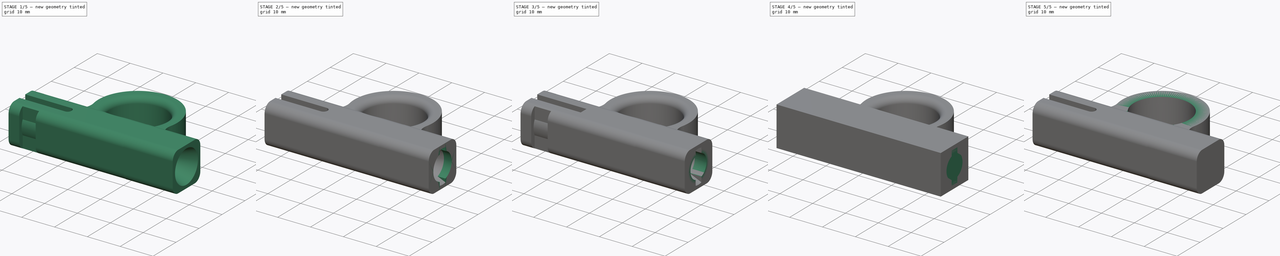
[diagram: build sequence overview — one tinted view per stage of 5, left to right]
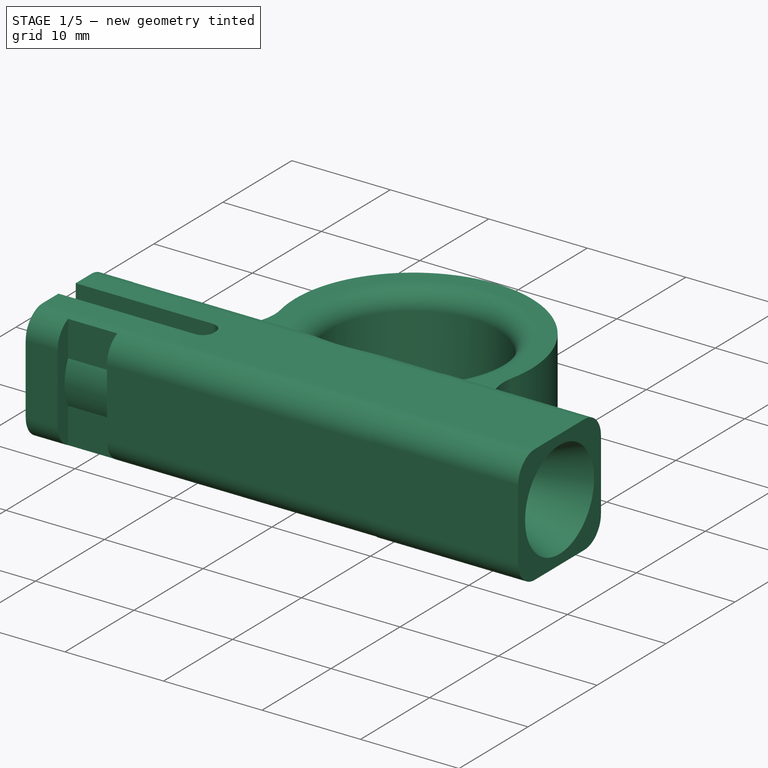
[diagram: stage 1 of 5 — iso view after this stage's code; geometry added in this stage tinted green]
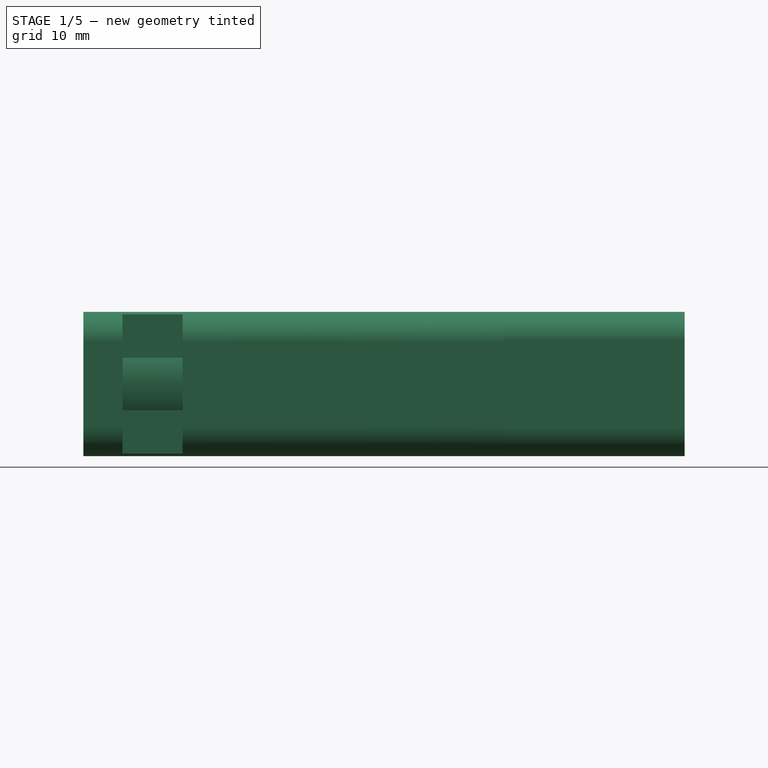
[diagram: stage 1 of 5 — front view after this stage's code; geometry added in this stage tinted green]
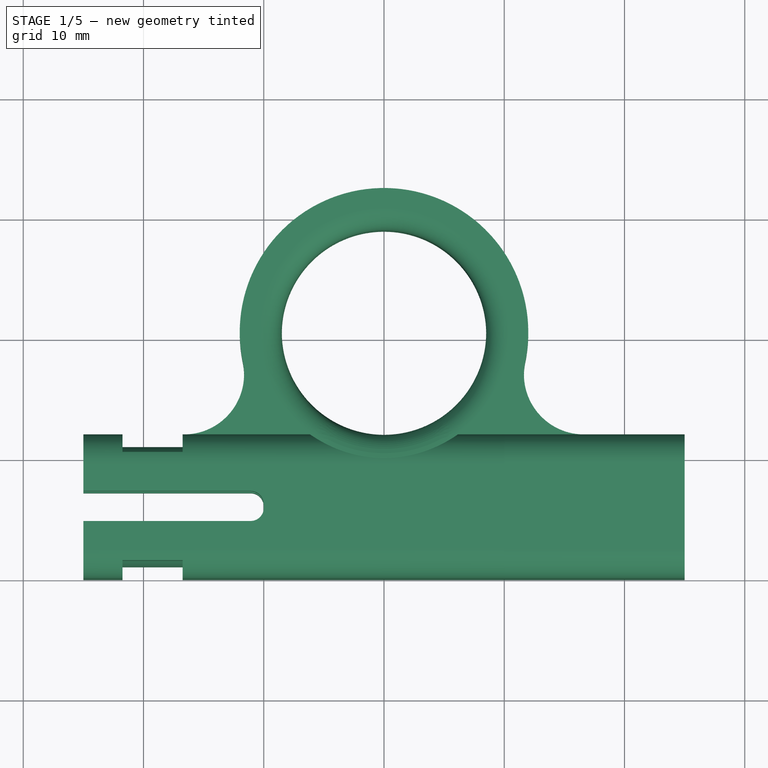
[diagram: stage 1 of 5 — top view after this stage's code; geometry added in this stage tinted green]
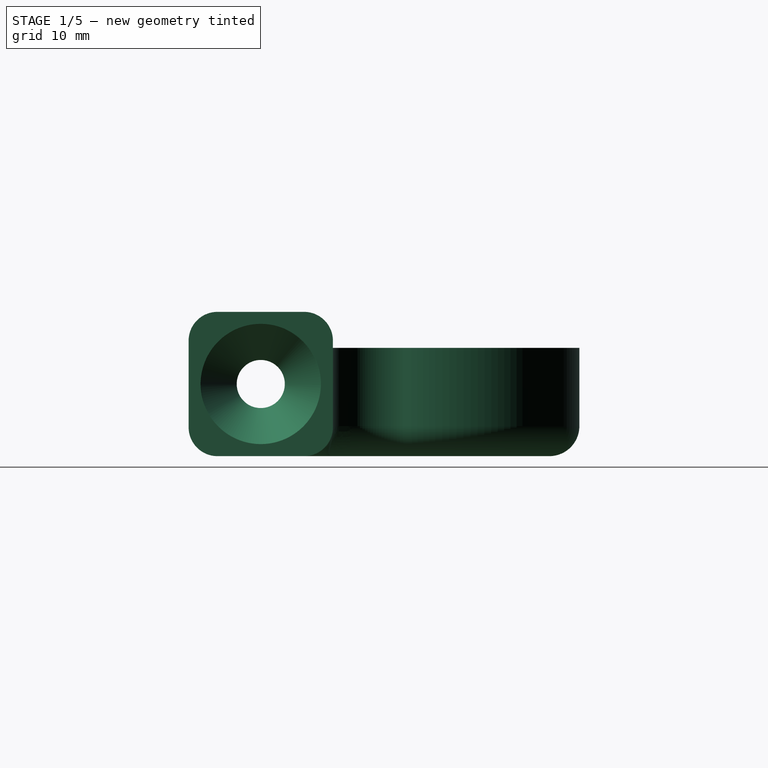
[diagram: stage 1 of 5 — right view after this stage's code; geometry added in this stage tinted green]
FCSTD DOCUMENT  (FreeCAD 0.16R5480 (Git))
Label: feed_tube_spinner_v3.0
License: All rights reserved
LicenseURL: http://en.wikipedia.org/wiki/All_rights_reserved
objects: Sketcher::SketchObject×13, PartDesign::Pocket×8, PartDesign::Fillet×7, PartDesign::Pad×5, PartDesign::Chamfer×4, Part::Feature×2
note: 52 computed .brp shape members not serialized (recipe doc carries the construction recipe); baked Part::Feature solids carry a one-line shape summary decoded from their .brp

FEATURE [Part::Feature] Fillet002005001  label="Fillet002006"
  shape: bbox 50.03 x 33.52 x 13.6 mm, 62 faces (baked)
FEATURE [Sketcher::SketchObject] Sketch009
  ExternalGeometry = -> [Fillet002005001]
  Placement = pos=(-25,0,0) rot=(0.57735,-0.57735,-0.57735;2.0944rad)
  Support = -> Fillet002005001 [Face46]
  sketch-geometry (1):
    g0: Circle CenterX=-6 CenterY=6 CenterZ=0 NormalX=0 NormalY=0 NormalZ=1 Radius=2
  constraints (2):
    c: Coincident(g0,g-3)
    c: Radius(g0) = 2
FEATURE [PartDesign::Pocket] Pocket005
  Length = 5
  Sketch = -> Sketch009
  Type = 1
FEATURE [PartDesign::Chamfer] Chamfer001
  Base = -> Pocket005 [Edge12]
  Size = 3
FEATURE [PartDesign::Chamfer] Chamfer002
  Base = -> Chamfer001 [Edge11]
  Size = 4.2
FEATURE [Sketcher::SketchObject] Sketch010
  ExternalGeometry = -> [Chamfer002]
  Placement = pos=(0,0,12) rot=(0,0,1;0rad)
  Support = -> Chamfer002 [Face5]
  sketch-geometry (12):
    g0: LineSegment StartX=-20.0833 StartY=2.5 StartZ=0 EndX=-18.4167 EndY=2.5 EndZ=0
    g1: LineSegment StartX=-18.4167 StartY=2.5 StartZ=0 EndX=-18.4167 EndY=3.5 EndZ=0
    g2: LineSegment StartX=-18.4167 StartY=3.5 StartZ=0 EndX=-20.0833 EndY=3.5 EndZ=0
    g3: LineSegment StartX=-20.0833 StartY=3.5 StartZ=0 EndX=-20.0833 EndY=2.5 EndZ=0
    g4: LineSegment StartX=-21.75 StartY=9.5 StartZ=0 EndX=-20.0833 EndY=9.5 EndZ=0
    g5: LineSegment StartX=-20.0833 StartY=9.5 StartZ=0 EndX=-20.0833 EndY=8.5 EndZ=0
    g6: LineSegment StartX=-20.0833 StartY=8.5 StartZ=0 EndX=-21.75 EndY=8.5 EndZ=0
    g7: LineSegment StartX=-21.75 StartY=8.5 StartZ=0 EndX=-21.75 EndY=9.5 EndZ=0
    g8: LineSegment StartX=-18.4167 StartY=9.5 StartZ=0 EndX=-16.75 EndY=9.5 EndZ=0
    g9: LineSegment StartX=-16.75 StartY=9.5 StartZ=0 EndX=-16.75 EndY=8.5 EndZ=0
    g10: LineSegment StartX=-16.75 StartY=8.5 StartZ=0 EndX=-18.4167 EndY=8.5 EndZ=0
    g11: LineSegment StartX=-18.4167 StartY=8.5 StartZ=0 EndX=-18.4167 EndY=9.5 EndZ=0
  constraints (36):
    c: Coincident(g0,g1)
    c: Coincident(g1,g2)
    c: Coincident(g2,g3)
    c: Coincident(g3,g0)
    c: Horizontal(g0)
    c: Horizontal(g2)
    c: Vertical(g1)
    c: Vertical(g3)
    c: PointOnObject(g0,g-4)
    c: Coincident(g4,g5)
    c: Coincident(g5,g6)
    c: Coincident(g6,g7)
    c: Coincident(g7,g4)
    c: Horizontal(g4)
    c: Horizontal(g6)
    c: Vertical(g5)
    c: Vertical(g7)
    c: PointOnObject(g4,g-3)
    c: Coincident(g8,g9)
    c: Coincident(g9,g10)
    c: Coincident(g10,g11)
    c: Coincident(g11,g8)
    c: Horizontal(g8)
    c: Horizontal(g10)
    c: Vertical(g9)
    c: Vertical(g11)
    c: PointOnObject(g8,g-3)
    c: Equal(g6,g2)
    c: Equal(g2,g10)
    c: PointOnObject(g5,g3)
    c: PointOnObject(g10,g1)
    c: PointOnObject(g-6,g7)
    c: PointOnObject(g-6,g9)
    c: Equal(g1,g9)
    c: Equal(g9,g5)
    c: DistanceY(g1) = 1
FEATURE [PartDesign::Pad] Pad004
  Length = 12
  Length2 = 100
  Reversed = true
  Sketch = -> Sketch010
  Type = 0
FEATURE [Sketcher::SketchObject] Sketch011
  ExternalGeometry = -> [Pad004]
  Placement = pos=(10,0,0) rot=(0.57735,-0.57735,-0.57735;2.0944rad)
  Support = -> Pad004 [Face13]
  sketch-geometry (1):
    g0: Circle CenterX=-6 CenterY=6 CenterZ=0 NormalX=0 NormalY=0 NormalZ=1 Radius=3.5
  constraints (2):
    c: Coincident(g0,g-4)
    c: PointOnObject(g-4,g0)
FEATURE [PartDesign::Pocket] Pocket006
  Length = 5
  Sketch = -> Sketch011
  Type = 0
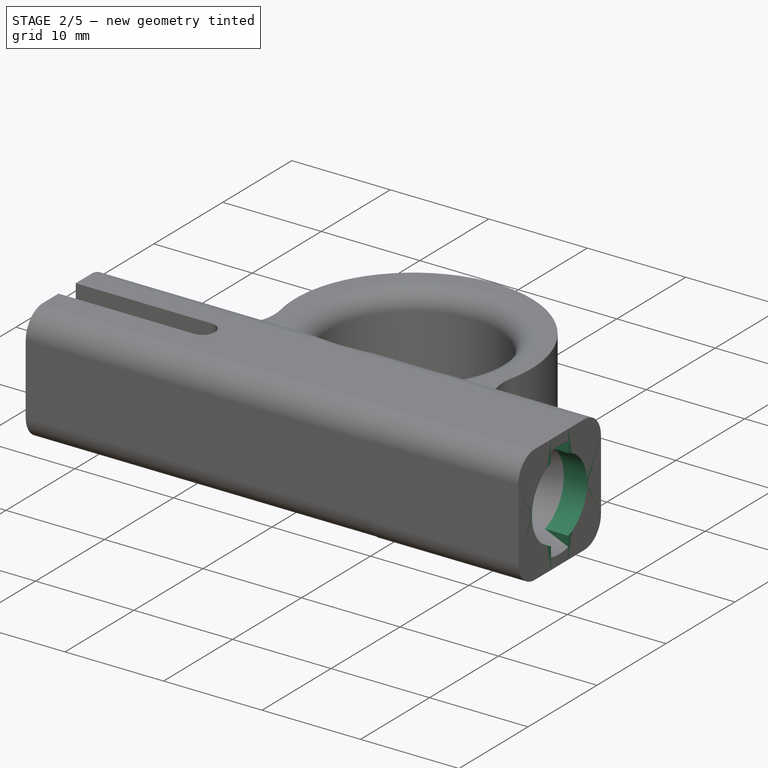
[diagram: stage 2 of 5 — iso view after this stage's code; geometry added in this stage tinted green]
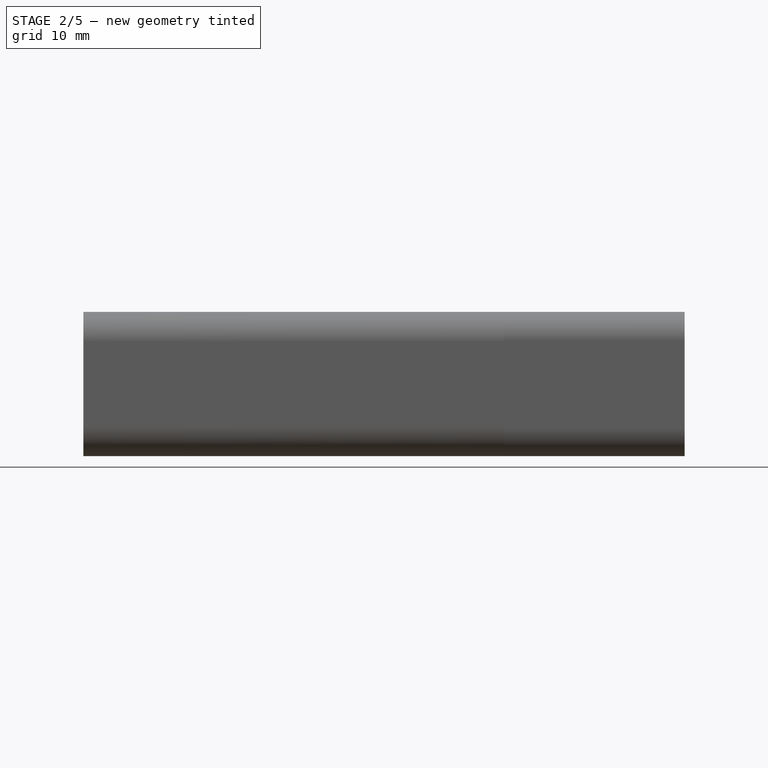
[diagram: stage 2 of 5 — front view after this stage's code; geometry added in this stage tinted green]
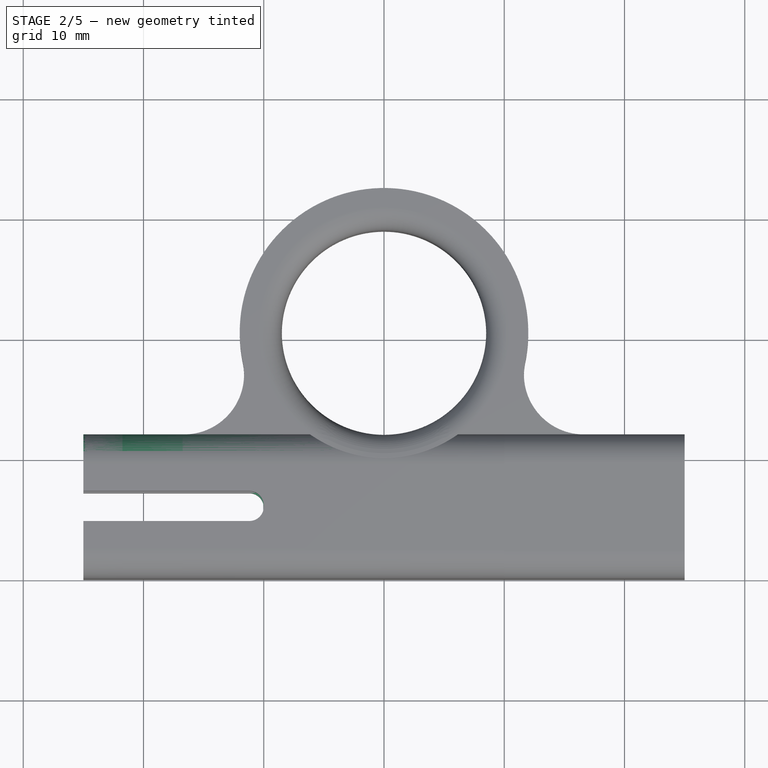
[diagram: stage 2 of 5 — top view after this stage's code; geometry added in this stage tinted green]
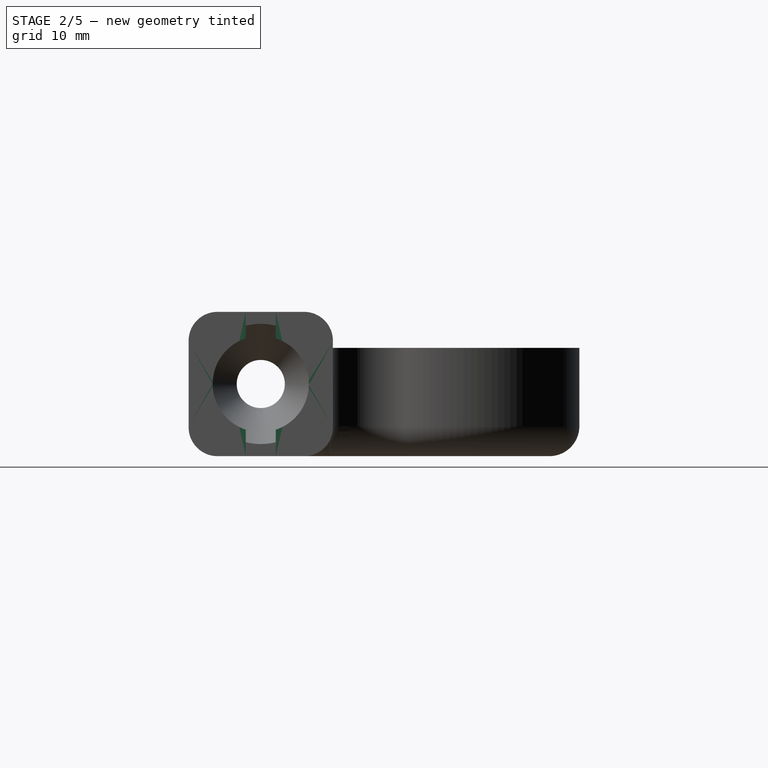
[diagram: stage 2 of 5 — right view after this stage's code; geometry added in this stage tinted green]
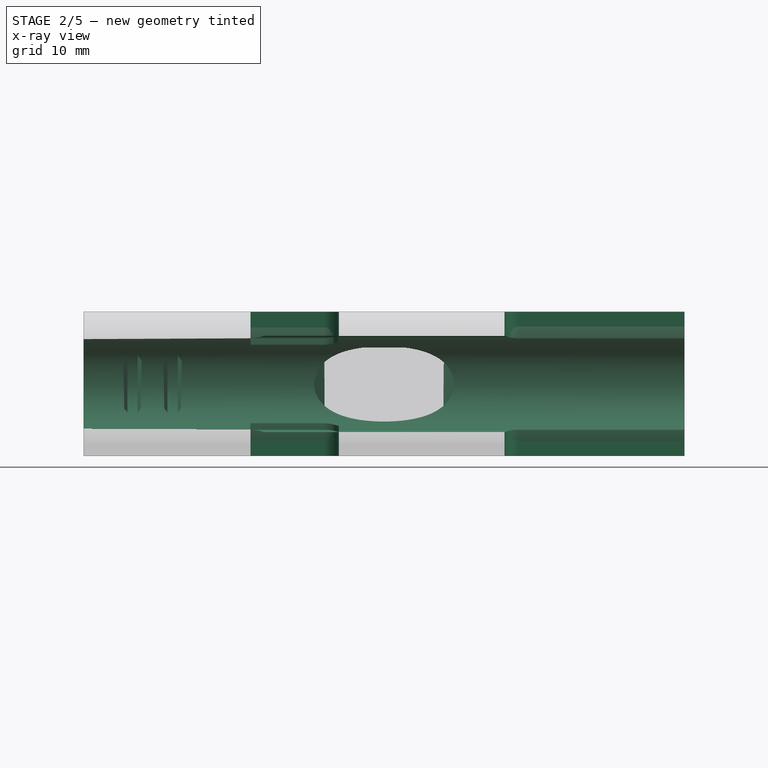
[diagram: stage 2 of 5 — x-ray composite at the front view; earlier geometry ghosted, this stage's added geometry solid]
FEATURE [Part::Feature] Fillet002001  label="Fillet003"
  shape: bbox 50.03 x 33.52 x 12.03 mm, 47 faces (baked)
FEATURE [PartDesign::Fillet] Fillet002002
  Base = -> Fillet002001 [Edge137]
  Radius = 0.9
FEATURE [Sketcher::SketchObject] Sketch004
  ExternalGeometry = -> [Fillet002002]
  Placement = pos=(0,0,12) rot=(0,0,1;0rad)
  Support = -> Fillet002002 [Face32]
  sketch-geometry (1):
    g0: Circle CenterX=0 CenterY=20.5 CenterZ=0 NormalX=0 NormalY=0 NormalZ=1 Radius=10.5
  constraints (2):
    c: Coincident(g0,g-3)
    c: Radius(g0) = 10.5
FEATURE [PartDesign::Pocket] Pocket002
  Length = 3
  Sketch = -> Sketch004
  Type = 0
FEATURE [PartDesign::Fillet] Fillet002003
  Base = -> Pocket002 [Edge95]
  Radius = 1.9
FEATURE [PartDesign::Chamfer] Chamfer003
  Base = -> Pocket006 [Edge244,Edge243,Edge241,Edge242,Edge239,Edge240]
  Size = 0.5
FEATURE [Sketcher::SketchObject] Sketch012
  ExternalGeometry = -> [Chamfer003]
  Placement = pos=(0,0,12) rot=(0,0,1;0rad)
  Support = -> Chamfer003 [Face36]
  sketch-geometry (4):
    g0: ArcOfCircle CenterX=-25 CenterY=6 CenterZ=0 NormalX=0 NormalY=0 NormalZ=1 Radius=1.25 StartAngle=1.5708 EndAngle=4.71239
    g1: ArcOfCircle CenterX=-5 CenterY=6 CenterZ=0 NormalX=0 NormalY=0 NormalZ=1 Radius=1.25 StartAngle=4.71239 EndAngle=7.85398
    g2: LineSegment StartX=-25 StartY=4.75 StartZ=0 EndX=-5 EndY=4.75 EndZ=0
    g3: LineSegment StartX=-25 StartY=7.25 StartZ=0 EndX=-5 EndY=7.25 EndZ=0
  constraints (9):
    c: Tangent(g0,g3) = 1.5708
    c: Tangent(g0,g2) = -1.5708
    c: Tangent(g2,g1) = -1.5708
    c: Tangent(g3,g1) = 1.5708
    c: Horizontal(g2)
    c: Equal(g0,g1)
    c: Coincident(g0,g-4)
    c: Coincident(g-3,g0)
    c: DistanceX(g3) = 20
FEATURE [PartDesign::Pocket] Pocket007
  Length = 20
  Sketch = -> Sketch012
  Type = 0
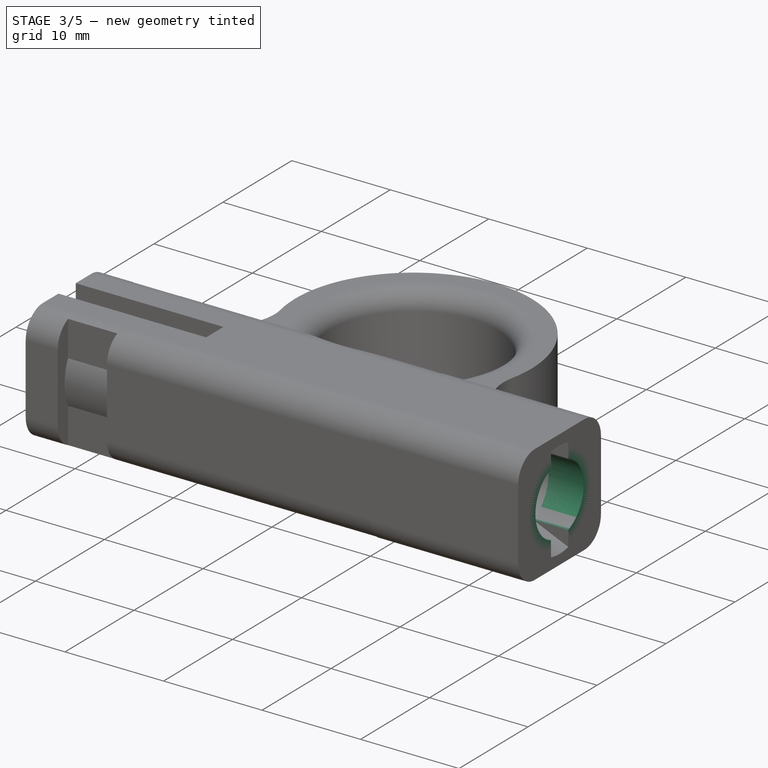
[diagram: stage 3 of 5 — iso view after this stage's code; geometry added in this stage tinted green]
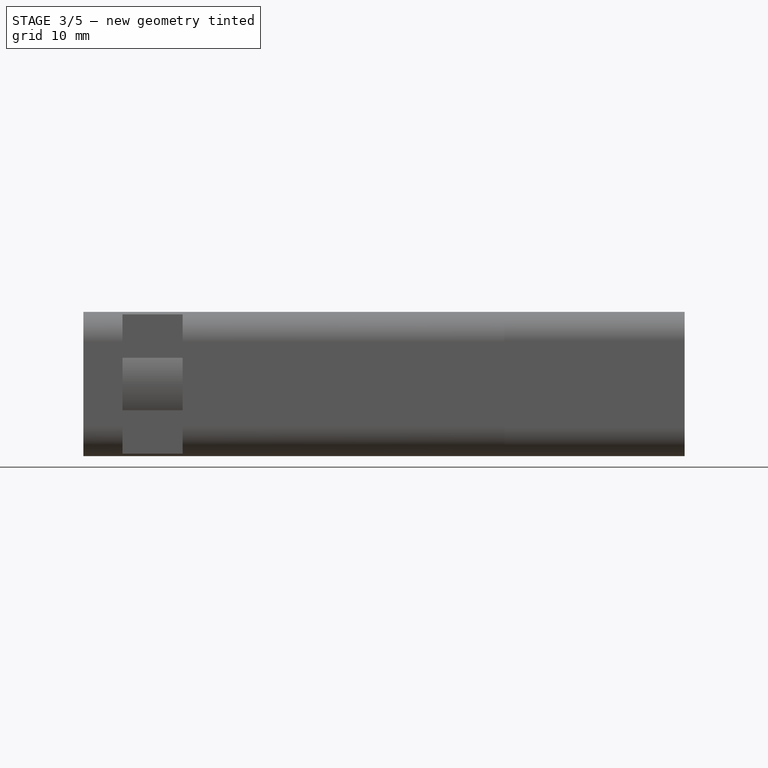
[diagram: stage 3 of 5 — front view after this stage's code; geometry added in this stage tinted green]
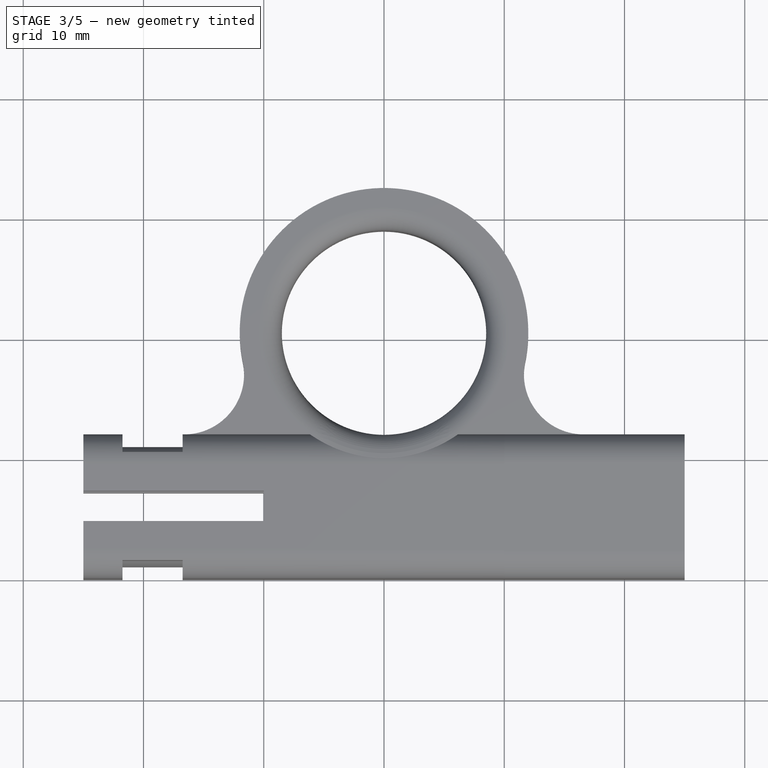
[diagram: stage 3 of 5 — top view after this stage's code; geometry added in this stage tinted green]
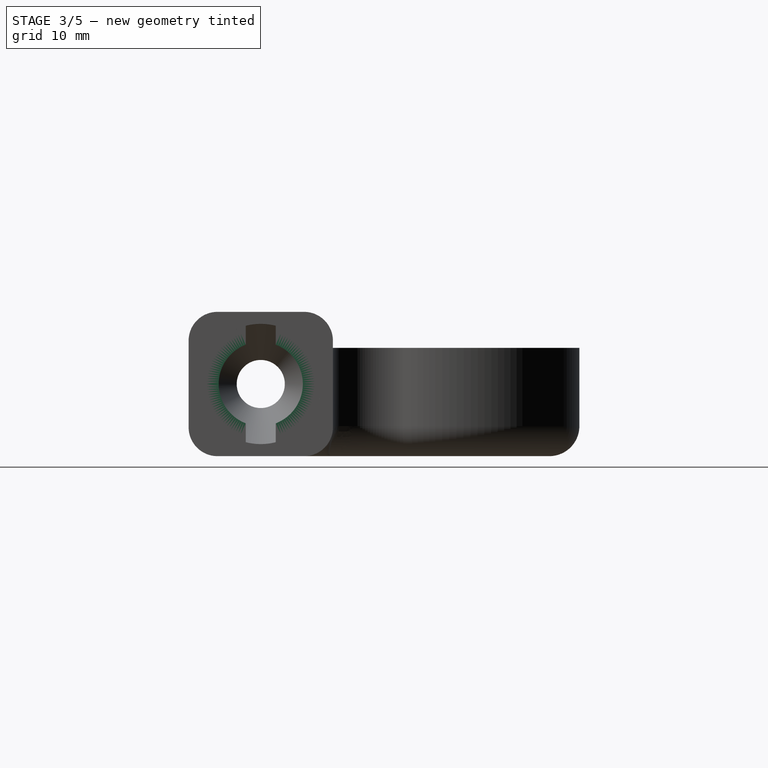
[diagram: stage 3 of 5 — right view after this stage's code; geometry added in this stage tinted green]
FEATURE [Sketcher::SketchObject] Sketch005
  ExternalGeometry = -> [Fillet002003]
  Placement = pos=(0,0,12) rot=(0,0,1;0rad)
  Support = -> Fillet002003 [Face43]
  sketch-geometry (16):
    g0: LineSegment StartX=-21.75 StartY=12 StartZ=0 EndX=-16.75 EndY=12 EndZ=0
    g1: LineSegment StartX=-16.75 StartY=12 StartZ=0 EndX=-16.75 EndY=10.5 EndZ=0
    g2: LineSegment StartX=-16.75 StartY=10.5 StartZ=0 EndX=-21.75 EndY=10.5 EndZ=0
    g3: LineSegment StartX=-21.75 StartY=10.5 StartZ=0 EndX=-21.75 EndY=12 EndZ=0
    g4: LineSegment StartX=-21.75 StartY=0 StartZ=0 EndX=-16.75 EndY=0 EndZ=0
    g5: LineSegment StartX=-16.75 StartY=0 StartZ=0 EndX=-16.75 EndY=1.5 EndZ=0
    g6: LineSegment StartX=-16.75 StartY=1.5 StartZ=0 EndX=-21.75 EndY=1.5 EndZ=0
    g7: LineSegment StartX=-21.75 StartY=1.5 StartZ=0 EndX=-21.75 EndY=0 EndZ=0
    g8: LineSegment StartX=16.75 StartY=0 StartZ=0 EndX=21.75 EndY=0 EndZ=0
    g9: LineSegment StartX=21.75 StartY=0 StartZ=0 EndX=21.75 EndY=1.5 EndZ=0
    g10: LineSegment StartX=21.75 StartY=1.5 StartZ=0 EndX=16.75 EndY=1.5 EndZ=0
    g11: LineSegment StartX=16.75 StartY=1.5 StartZ=0 EndX=16.75 EndY=0 EndZ=0
    g12: LineSegment StartX=16.75 StartY=12 StartZ=0 EndX=21.75 EndY=12 EndZ=0
    g13: LineSegment StartX=21.75 StartY=12 StartZ=0 EndX=21.75 EndY=10.5 EndZ=0
    g14: LineSegment StartX=21.75 StartY=10.5 StartZ=0 EndX=16.75 EndY=10.5 EndZ=0
    g15: LineSegment StartX=16.75 StartY=10.5 StartZ=0 EndX=16.75 EndY=12 EndZ=0
  constraints (48):
    c: Coincident(g0,g1)
    c: Coincident(g1,g2)
    c: Coincident(g2,g3)
    c: Coincident(g3,g0)
    c: Horizontal(g0)
    c: Horizontal(g2)
    c: Vertical(g1)
    c: Vertical(g3)
    c: PointOnObject(g0,g-4)
    c: Coincident(g4,g5)
    c: Coincident(g5,g6)
    c: Coincident(g6,g7)
    c: Coincident(g7,g4)
    c: Horizontal(g4)
    c: Horizontal(g6)
    c: Vertical(g5)
    c: Vertical(g7)
    c: PointOnObject(g4,g-1)
    c: Coincident(g8,g9)
    c: Coincident(g9,g10)
    c: Coincident(g10,g11)
    c: Coincident(g11,g8)
    c: Horizontal(g8)
    c: Horizontal(g10)
    c: Vertical(g9)
    c: Vertical(g11)
    c: PointOnObject(g8,g-1)
    c: Coincident(g12,g13)
    c: Coincident(g13,g14)
    c: Coincident(g14,g15)
    c: Coincident(g15,g12)
    c: Horizontal(g12)
    c: Horizontal(g14)
    c: Vertical(g13)
    c: Vertical(g15)
    c: PointOnObject(g12,g-3)
    c: Equal(g13,g9)
    c: Equal(g9,g5)
    c: Equal(g5,g1)
    c: Equal(g2,g6)
    c: Equal(g6,g14)
    c: Equal(g14,g10)
    c: DistanceX(g14) = -5
    c: DistanceX(g13,g-3) = 3.25
    c: PointOnObject(g14,g11)
    c: PointOnObject(g2,g7)
    c: DistanceX(g-4,g0) = 3.25
    c: DistanceY(g7) = -1.5
FEATURE [PartDesign::Pocket] Pocket003
  Length = 5
  Sketch = -> Sketch005
  Type = 1
FEATURE [PartDesign::Chamfer] Chamfer
  Base = -> Pocket003 [Edge54,Edge119,Edge84,Edge100]
  Size = 0.5
FEATURE [Sketcher::SketchObject] Sketch006
  ExternalGeometry = -> [Chamfer]
  Placement = pos=(-25,0,0) rot=(0.57735,-0.57735,-0.57735;2.0944rad)
  Support = -> Chamfer [Face1]
  sketch-geometry (2):
    g0: Circle CenterX=-6 CenterY=6 CenterZ=0 NormalX=0 NormalY=0 NormalZ=1 Radius=3.5
    g1: Circle CenterX=-6 CenterY=6 CenterZ=0 NormalX=0 NormalY=0 NormalZ=1 Radius=5
  constraints (4):
    c: Coincident(g0,g-4)
    c: Coincident(g1,g0)
    c: Radius(g0) = 3.5
    c: Radius(g1) = 5
FEATURE [PartDesign::Pad] Pad002
  Length = 50
  Length2 = 100
  Reversed = true
  Sketch = -> Sketch006
  Type = 0
FEATURE [Sketcher::SketchObject] Sketch007
  ExternalGeometry = -> [Pad002]
  Placement = pos=(0,0,12) rot=(0,0,1;0rad)
  Support = -> Pad002 [Face1]
  sketch-geometry (8):
    g0: LineSegment StartX=-25 StartY=7.25 StartZ=0 EndX=-10 EndY=7.25 EndZ=0
    g1: LineSegment StartX=-10 StartY=7.25 StartZ=0 EndX=-10 EndY=4.75 EndZ=0
    g2: LineSegment StartX=-10 StartY=4.75 StartZ=0 EndX=-25 EndY=4.75 EndZ=0
    g3: LineSegment StartX=-25 StartY=4.75 StartZ=0 EndX=-25 EndY=7.25 EndZ=0
    g4: LineSegment StartX=25 StartY=7.25 StartZ=0 EndX=10 EndY=7.25 EndZ=0
    g5: LineSegment StartX=10 StartY=7.25 StartZ=0 EndX=10 EndY=4.75 EndZ=0
    g6: LineSegment StartX=10 StartY=4.75 StartZ=0 EndX=25 EndY=4.75 EndZ=0
    g7: LineSegment StartX=25 StartY=4.75 StartZ=0 EndX=25 EndY=7.25 EndZ=0
  constraints (22):
    c: Coincident(g0,g1)
    c: Coincident(g1,g2)
    c: Coincident(g2,g3)
    c: Coincident(g3,g0)
    c: Horizontal(g0)
    c: Horizontal(g2)
    c: Vertical(g1)
    c: Vertical(g3)
    c: Coincident(g0,g-4)
    c: Coincident(g4,g5)
    c: Coincident(g5,g6)
    c: Coincident(g6,g7)
    c: Coincident(g7,g4)
    c: Horizontal(g4)
    c: Horizontal(g6)
    c: Vertical(g5)
    c: Vertical(g7)
    c: Coincident(g4,g-5)
    c: Coincident(g6,g-6)
    c: PointOnObject(g1,g6)
    c: Equal(g4,g0)
    c: DistanceX(g4) = -15
FEATURE [PartDesign::Pocket] Pocket004
  Length = 5
  Sketch = -> Sketch007
  Type = 1
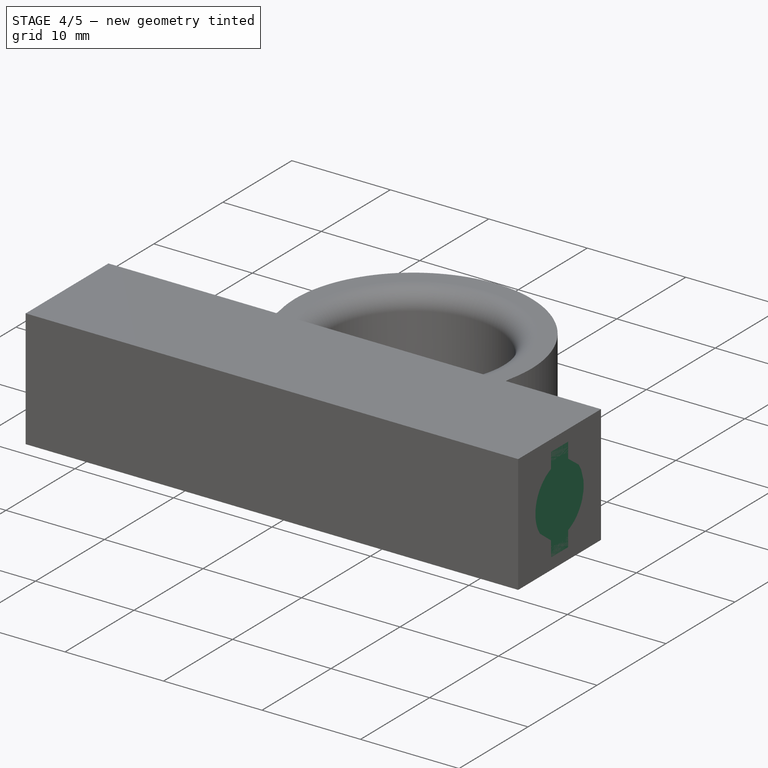
[diagram: stage 4 of 5 — iso view after this stage's code; geometry added in this stage tinted green]
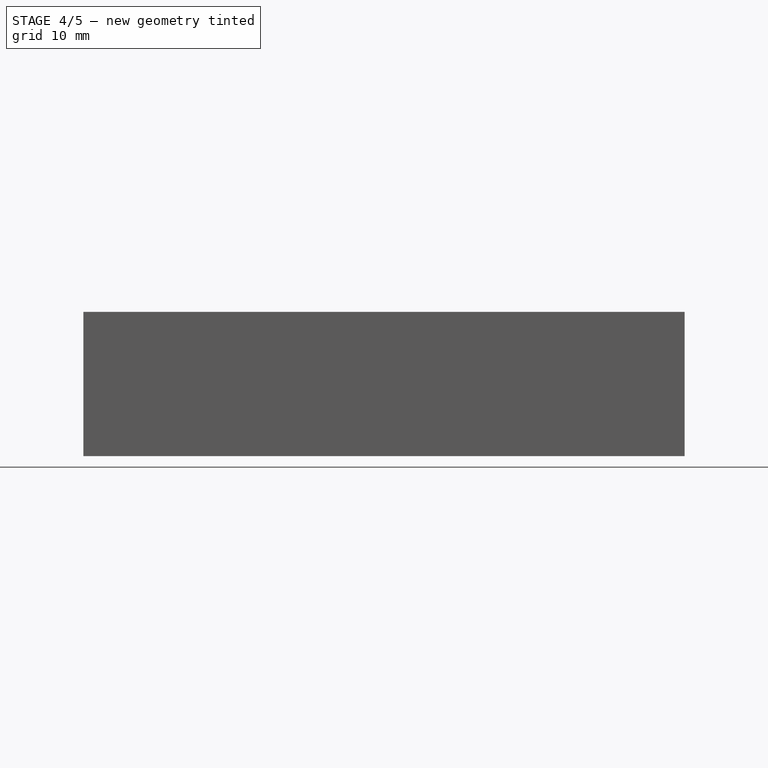
[diagram: stage 4 of 5 — front view after this stage's code; geometry added in this stage tinted green]
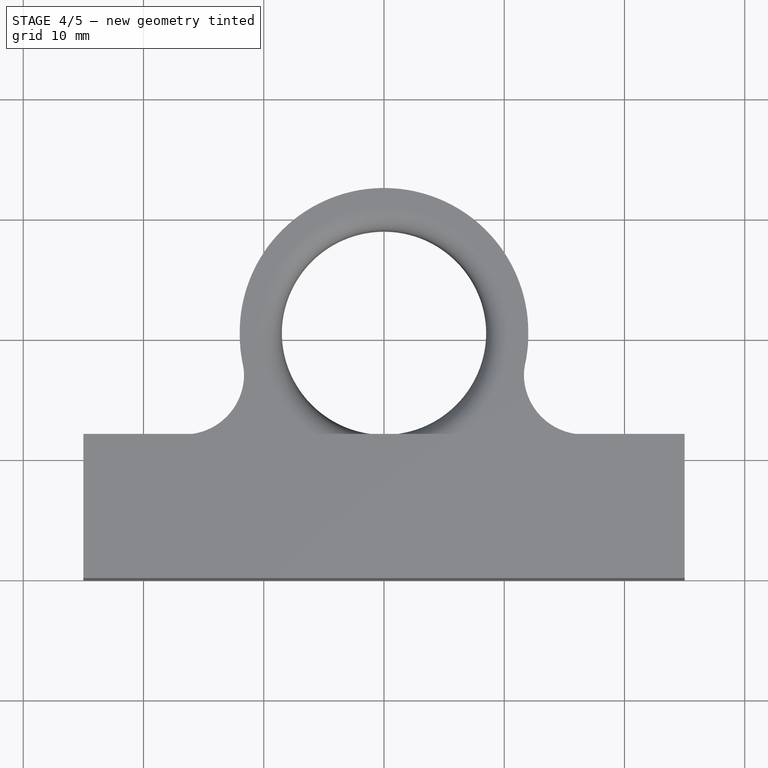
[diagram: stage 4 of 5 — top view after this stage's code; geometry added in this stage tinted green]
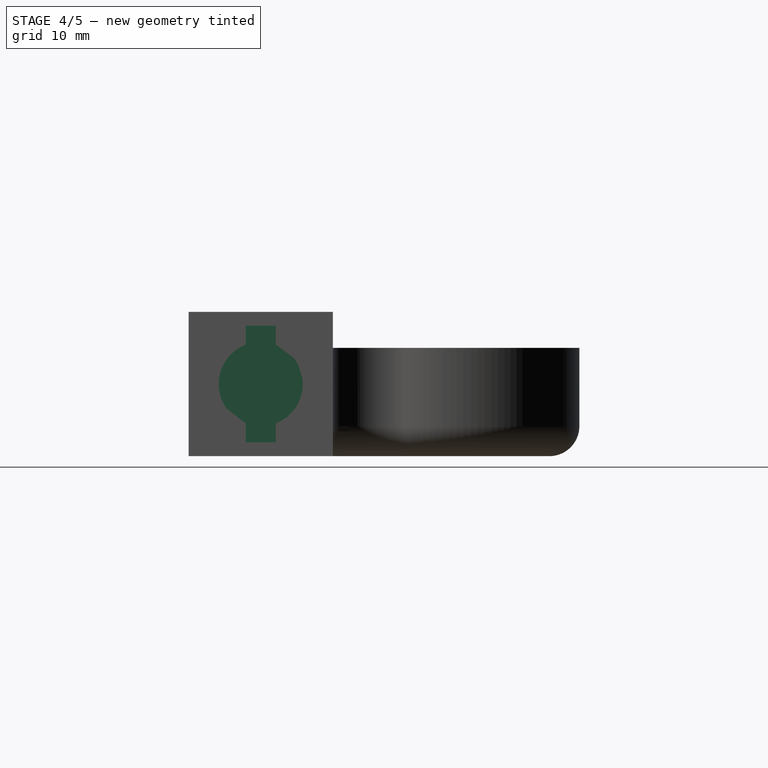
[diagram: stage 4 of 5 — right view after this stage's code; geometry added in this stage tinted green]
FEATURE [Sketcher::SketchObject] Sketch
  sketch-geometry (4):
    g0: LineSegment StartX=-25 StartY=0 StartZ=0 EndX=25 EndY=0 EndZ=0
    g1: LineSegment StartX=25 StartY=0 StartZ=0 EndX=25 EndY=12 EndZ=0
    g2: LineSegment StartX=25 StartY=12 StartZ=0 EndX=-25 EndY=12 EndZ=0
    g3: LineSegment StartX=-25 StartY=12 StartZ=0 EndX=-25 EndY=0 EndZ=0
  constraints (12):
    c: Coincident(g0,g1)
    c: Coincident(g1,g2)
    c: Coincident(g2,g3)
    c: Coincident(g3,g0)
    c: Horizontal(g0)
    c: Horizontal(g2)
    c: Vertical(g1)
    c: Vertical(g3)
    c: PointOnObject(g0,g-1)
    c: DistanceY(g3) = -12
    c: DistanceX(g-1,g0) = -25
    c: DistanceX(g0) = 50
FEATURE [PartDesign::Pad] Pad
  Length = 12
  Length2 = 100
  Sketch = -> Sketch
  Type = 0
FEATURE [Sketcher::SketchObject] Sketch001
  ExternalGeometry = -> [Pad]
  Placement = pos=(-25,0,0) rot=(0.57735,-0.57735,-0.57735;2.0944rad)
  Support = -> Pad [Face4]
  sketch-geometry (3):
    g0: LineSegment [constr] StartX=-12 StartY=12 StartZ=0 EndX=-6 EndY=6 EndZ=0
    g1: LineSegment [constr] StartX=-6 StartY=6 StartZ=0 EndX=0 EndY=0 EndZ=0
    g2: Circle CenterX=-6 CenterY=6 CenterZ=0 NormalX=0 NormalY=0 NormalZ=1 Radius=4
  constraints (7):
    c: Coincident(g-3,g0)
    c: Coincident(g0,g1)
    c: Coincident(g1,g-1)
    c: Equal(g1,g0)
    c: PointOnObject(g0,g1)
    c: Coincident(g2,g0)
    c: Radius(g2) = 4
FEATURE [PartDesign::Pocket] Pocket
  Length = 5
  Sketch = -> Sketch001
  Type = 1
FEATURE [PartDesign::Fillet] Fillet002004
  Base = -> Pocket004 [Edge73,Edge235,Edge236,Edge80,Edge234,Edge34,Edge39,Edge243]
  Radius = 1.1
FEATURE [Sketcher::SketchObject] Sketch008
  ExternalGeometry = -> [Fillet002004]
  Placement = pos=(0,0,12) rot=(0,0,1;0rad)
  Support = -> Fillet002004 [Face1]
  sketch-geometry (4):
    g0: LineSegment StartX=25 StartY=12 StartZ=0 EndX=10 EndY=12 EndZ=0
    g1: LineSegment StartX=10 StartY=12 StartZ=0 EndX=10 EndY=0 EndZ=0
    g2: LineSegment StartX=10 StartY=0 StartZ=0 EndX=25 EndY=0 EndZ=0
    g3: LineSegment StartX=25 StartY=0 StartZ=0 EndX=25 EndY=12 EndZ=0
  constraints (11):
    c: Coincident(g0,g1)
    c: Coincident(g1,g2)
    c: Coincident(g2,g3)
    c: Coincident(g3,g0)
    c: Horizontal(g0)
    c: Horizontal(g2)
    c: Vertical(g1)
    c: Vertical(g3)
    c: Coincident(g0,g-3)
    c: PointOnObject(g1,g-1)
    c: DistanceX(g0) = -15
FEATURE [PartDesign::Pad] Pad003
  Length = 12
  Length2 = 100
  Reversed = true
  Sketch = -> Sketch008
  Type = 0
FEATURE [PartDesign::Fillet] Fillet002005
  Base = -> Pad003 [Edge242,Edge240,Edge230,Edge208]
  Radius = 2.4
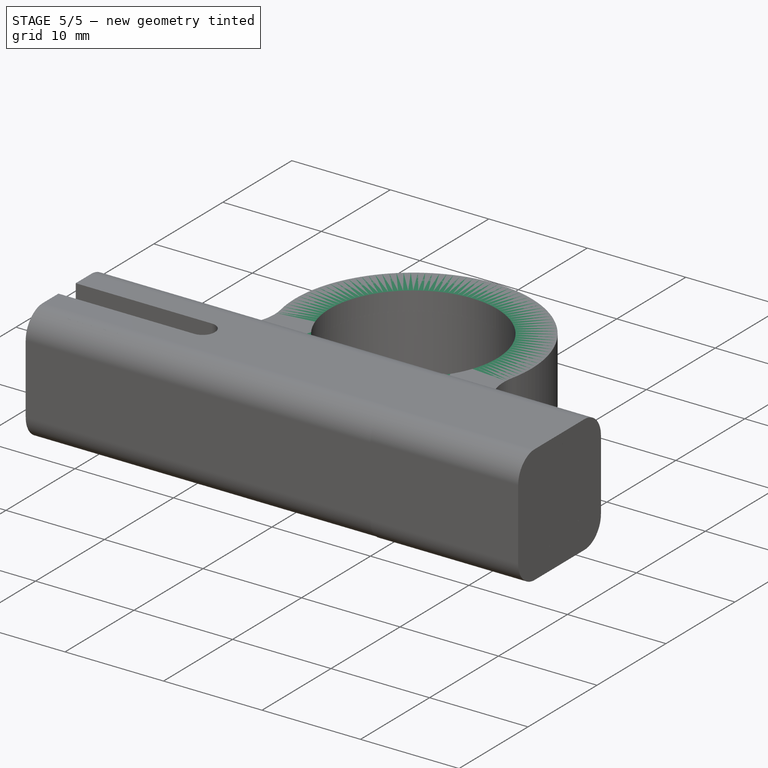
[diagram: stage 5 of 5 — iso view after this stage's code; geometry added in this stage tinted green]
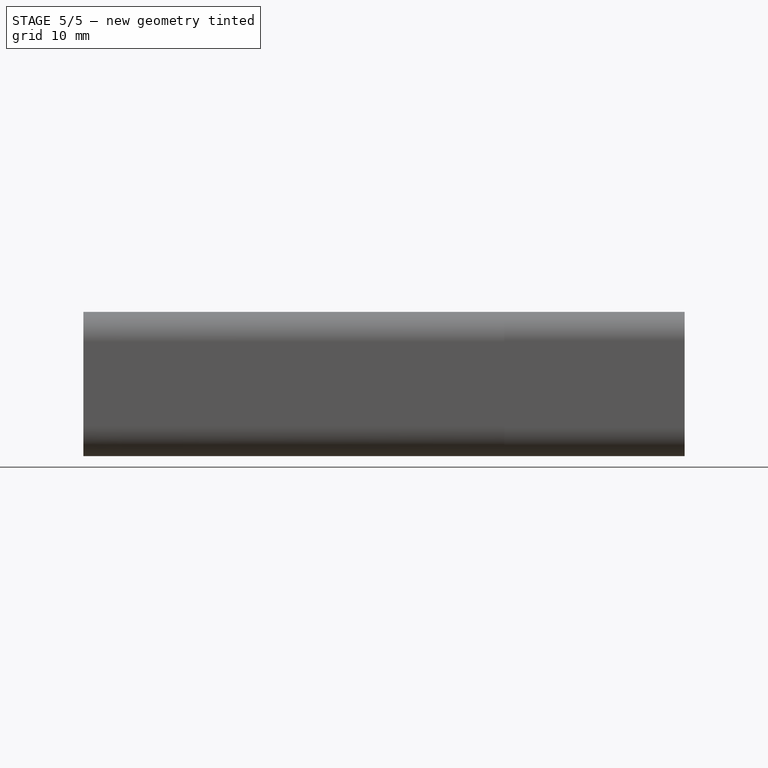
[diagram: stage 5 of 5 — front view after this stage's code; geometry added in this stage tinted green]
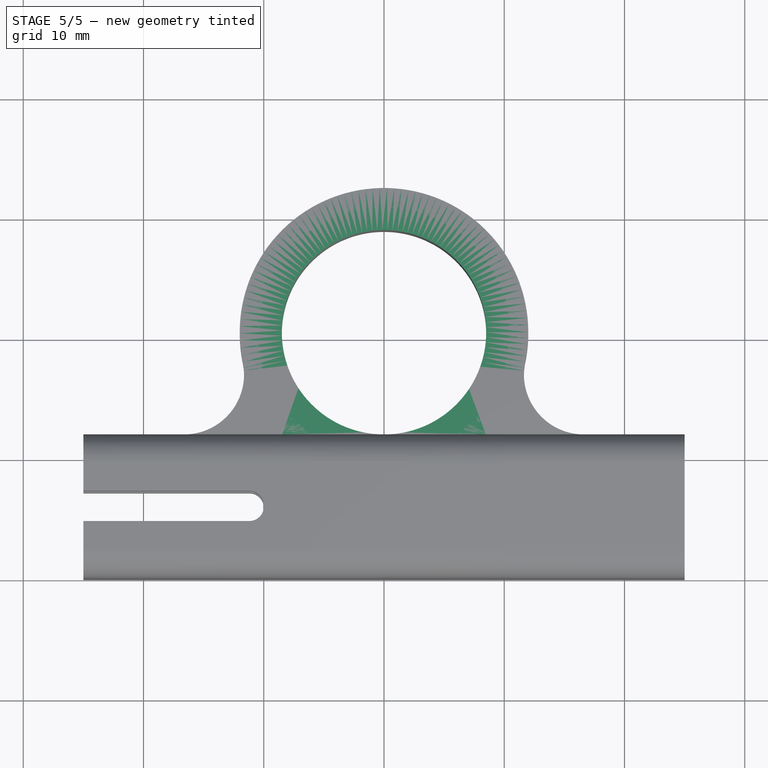
[diagram: stage 5 of 5 — top view after this stage's code; geometry added in this stage tinted green]
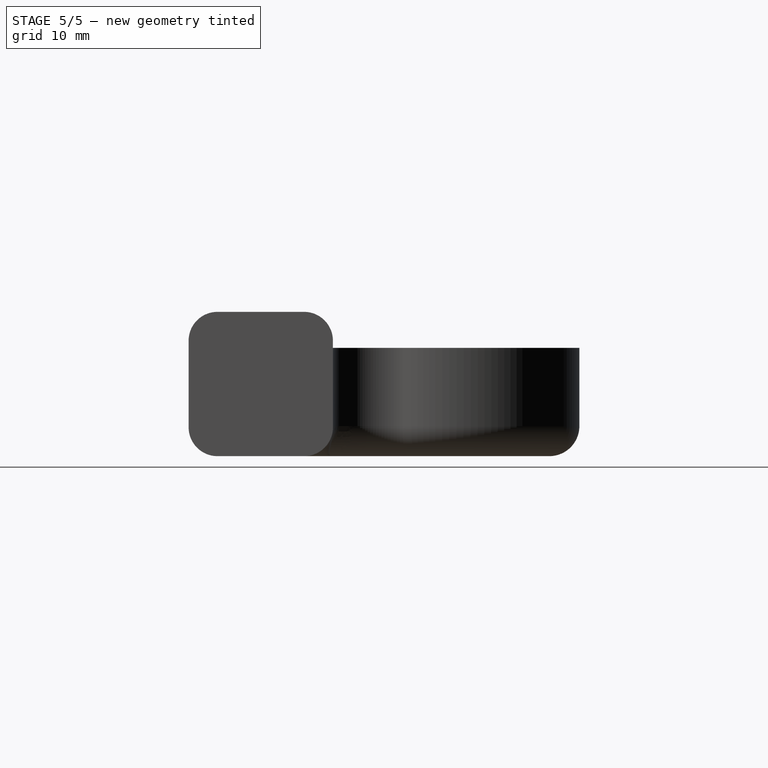
[diagram: stage 5 of 5 — right view after this stage's code; geometry added in this stage tinted green]
FEATURE [Sketcher::SketchObject] Sketch002
  ExternalGeometry = -> [Pocket]
  Placement = pos=(0,0,0) rot=(1,0,0;3.14159rad)
  Support = -> Pocket [Face4]
  sketch-geometry (2):
    g0: Circle CenterX=0 CenterY=-20.5 CenterZ=0 NormalX=0 NormalY=0 NormalZ=1 Radius=8.5
    g1: Circle CenterX=0 CenterY=-20.5 CenterZ=0 NormalX=0 NormalY=0 NormalZ=1 Radius=12
  constraints (5):
    c: PointOnObject(g0,g-2)
    c: Coincident(g1,g0)
    c: Radius(g0) = 8.5
    c: Tangent(g0,g-3)
    c: Radius(g1) = 12
FEATURE [PartDesign::Pad] Pad001
  Length = 9
  Length2 = 100
  Reversed = true
  Sketch = -> Sketch002
  Type = 0
FEATURE [PartDesign::Fillet] Fillet
  Base = -> Pad001 [Edge20,Edge17]
  Radius = 5
FEATURE [Sketcher::SketchObject] Sketch003
  ExternalGeometry = -> [Fillet]
  Placement = pos=(0,0,12) rot=(0,0,1;0rad)
  Support = -> Fillet [Face10]
  sketch-geometry (10):
    g0: LineSegment StartX=-25 StartY=4.75 StartZ=0 EndX=-10 EndY=4.75 EndZ=0
    g1: LineSegment StartX=-10 StartY=4.75 StartZ=0 EndX=-10 EndY=7.25 EndZ=0
    g2: LineSegment StartX=-10 StartY=7.25 StartZ=0 EndX=-25 EndY=7.25 EndZ=0
    g3: LineSegment StartX=-25 StartY=7.25 StartZ=0 EndX=-25 EndY=4.75 EndZ=0
    g4: LineSegment StartX=25 StartY=4.75 StartZ=0 EndX=10 EndY=4.75 EndZ=0
    g5: LineSegment StartX=10 StartY=4.75 StartZ=0 EndX=10 EndY=7.25 EndZ=0
    g6: LineSegment StartX=10 StartY=7.25 StartZ=0 EndX=25 EndY=7.25 EndZ=0
    g7: LineSegment StartX=25 StartY=7.25 StartZ=0 EndX=25 EndY=4.75 EndZ=0
    g8: LineSegment [constr] StartX=-25 StartY=12 StartZ=0 EndX=-10 EndY=7.25 EndZ=0
    g9: LineSegment [constr] StartX=-10 StartY=4.75 StartZ=0 EndX=-25 EndY=0 EndZ=0
  constraints (28):
    c: Coincident(g0,g1)
    c: Coincident(g1,g2)
    c: Coincident(g2,g3)
    c: Coincident(g3,g0)
    c: Horizontal(g0)
    c: Horizontal(g2)
    c: Vertical(g1)
    c: Vertical(g3)
    c: PointOnObject(g0,g-3)
    c: Coincident(g4,g5)
    c: Coincident(g5,g6)
    c: Coincident(g6,g7)
    c: Coincident(g7,g4)
    c: Horizontal(g4)
    c: Horizontal(g6)
    c: Vertical(g5)
    c: Vertical(g7)
    c: PointOnObject(g4,g-4)
    c: Equal(g6,g2)
    c: Equal(g5,g1)
    c: DistanceY(g6,g4) = -2.5
    c: DistanceX(g2) = -15
    c: Coincident(g8,g-3)
    c: Coincident(g8,g1)
    c: Coincident(g9,g0)
    c: Coincident(g9,g-3)
    c: Equal(g8,g9)
    c: PointOnObject(g1,g6)
FEATURE [PartDesign::Pocket] Pocket001
  Length = 5
  Sketch = -> Sketch003
  Type = 1
FEATURE [PartDesign::Fillet] Fillet001
  Base = -> Pocket001 [Edge39,Edge91,Edge41,Edge92,Edge57,Edge93,Edge59,Edge94]
  Radius = 1.2
FEATURE [PartDesign::Fillet] Fillet002
  Base = -> Fillet001 [Edge13,Edge12,Edge5,Edge35,Edge58]
  Radius = 2.5
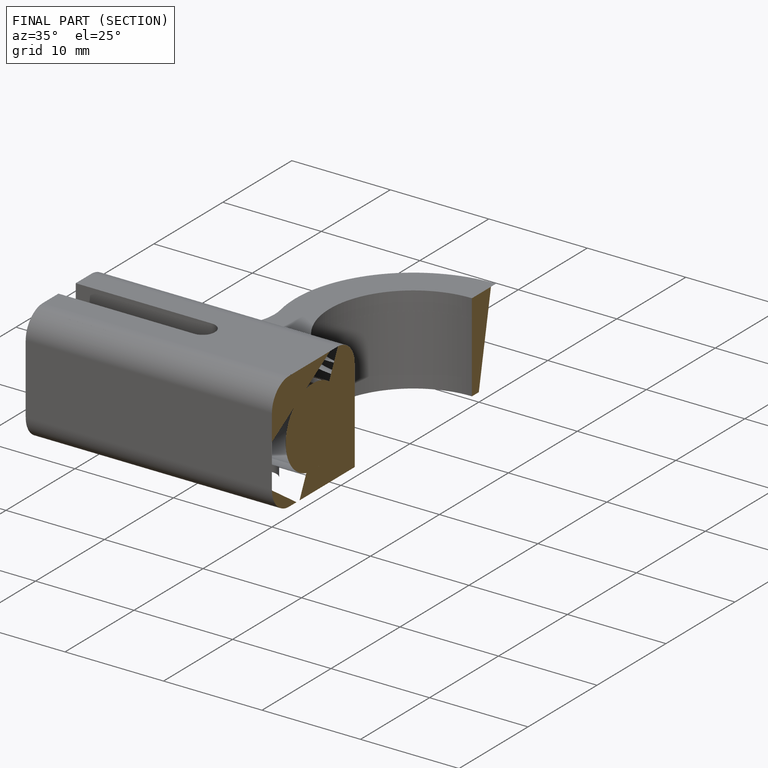
[diagram: finished part — half-section view (interior)]
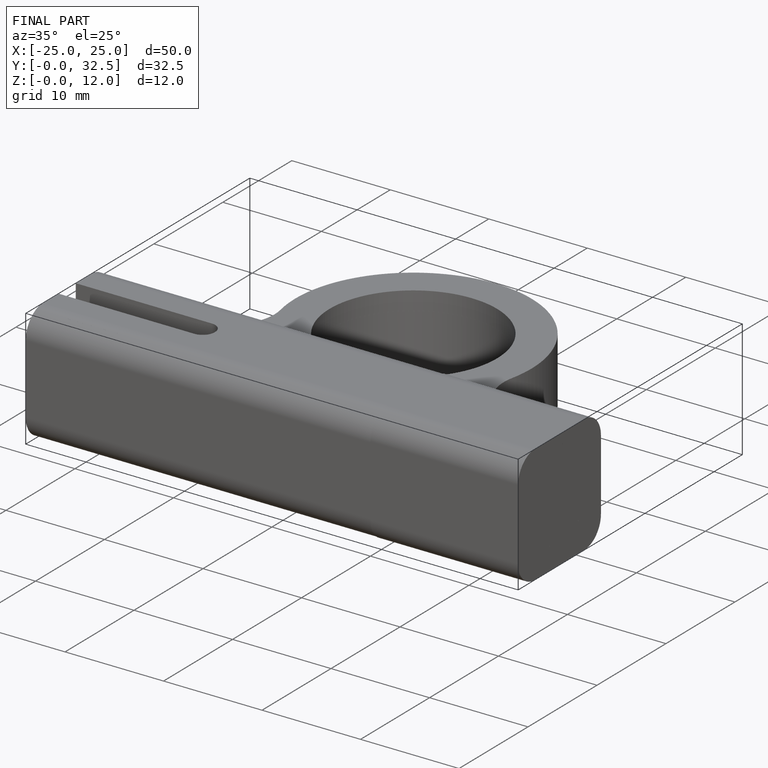
[diagram: finished part — iso view with bounding-box wireframe]
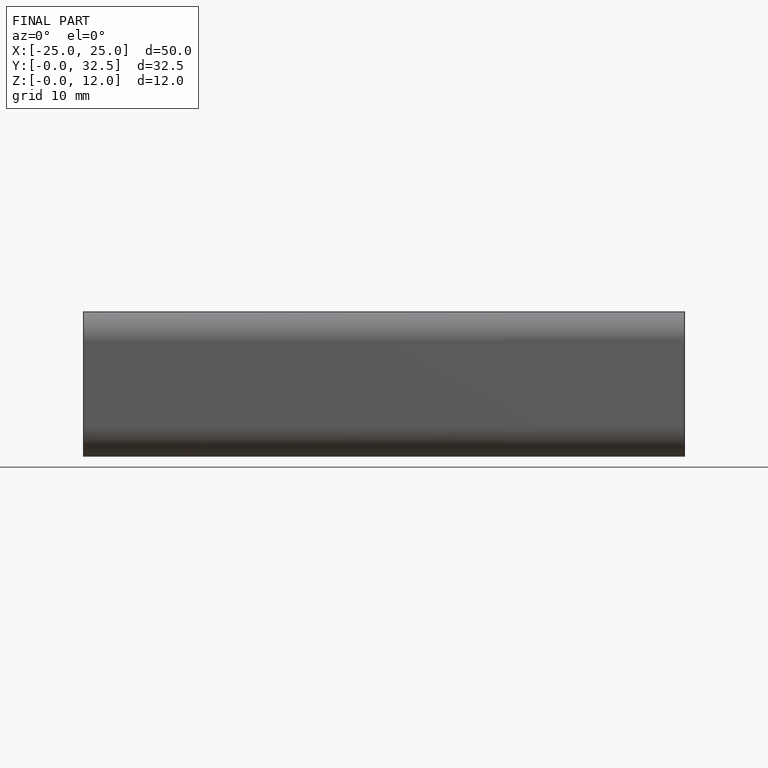
[diagram: finished part — front view with bounding-box wireframe]
